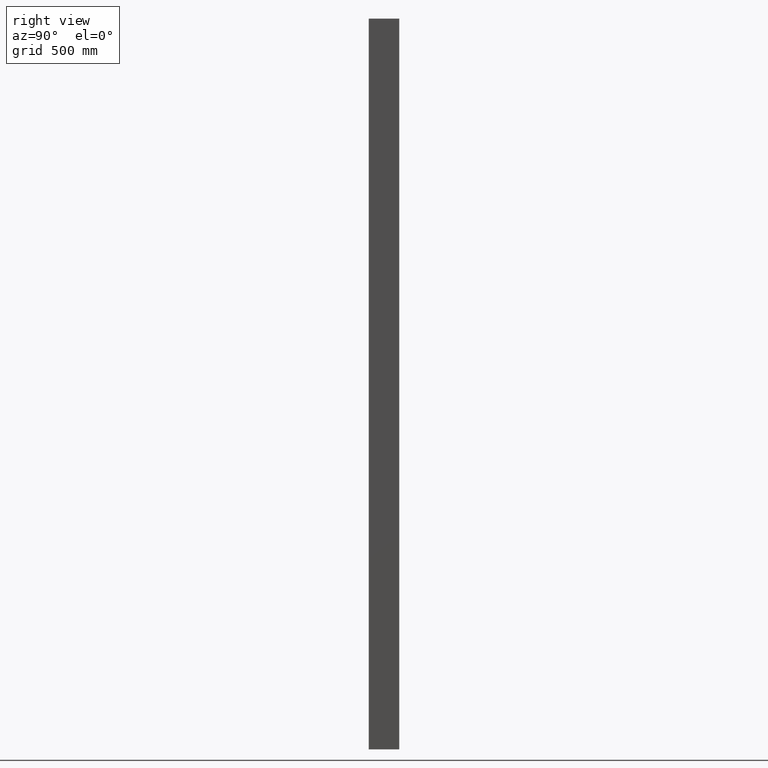
[diagram: clean part render]
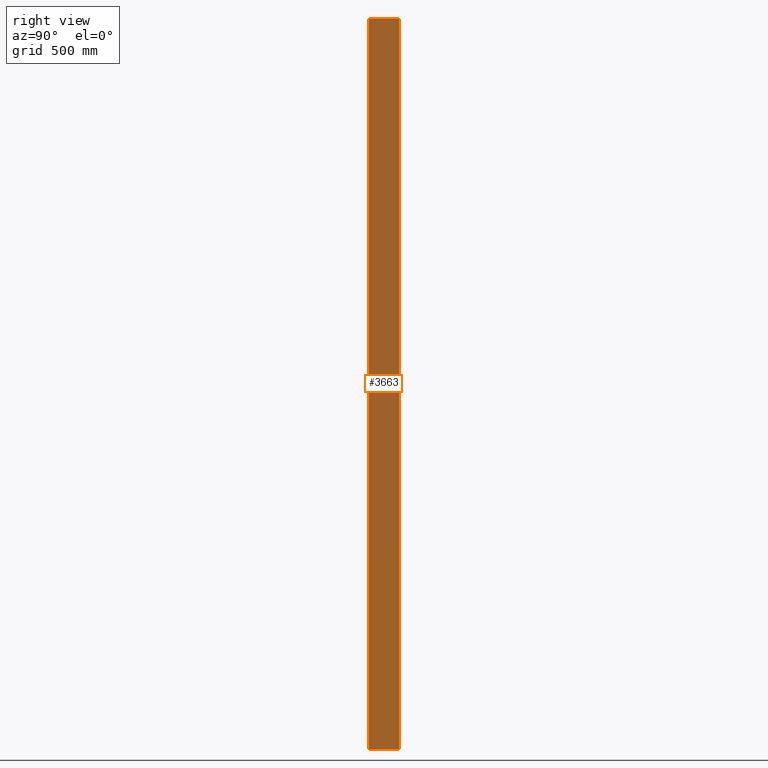
[diagram: same view with one face highlighted and labeled with its STEP entity id]
A machine part, right view. The second image highlights one B-rep face of the part: STEP entity #3663.
In plain terms, the highlighted planar face has unit normal (-1, -0, 0).
Its self-contained STEP definition (entity closure, byte-faithful):
#624 = EDGE_CURVE ( 'NONE', #9004, #5984, #1714, .T. ) ;
#666 = EDGE_CURVE ( 'NONE', #9004, #18870, #13837, .T. ) ;
#1454 = EDGE_CURVE ( 'NONE', #18870, #2544, #14642, .T. ) ;
#1479 = CARTESIAN_POINT ( 'NONE',  ( 23.50000000000000000, 5.870304242705519900E-015, 1500.000000000000000 ) ) ;
#1714 = LINE ( 'NONE', #1479, #9162 ) ;
#2544 = VERTEX_POINT ( 'NONE', #13638 ) ;
#3663 = ADVANCED_FACE ( 'NONE', ( #17589 ), #22610, .F. ) ;
#3887 = CARTESIAN_POINT ( 'NONE',  ( 23.50000000000000000, 5.870304242705519900E-015, -1500.000000000000000 ) ) ;
#4981 = LINE ( 'NONE', #19811, #6066 ) ;
#5984 = VERTEX_POINT ( 'NONE', #13551 ) ;
#6066 = VECTOR ( 'NONE', #18409, 1000.000000000000000 ) ;
#6716 = CARTESIAN_POINT ( 'NONE',  ( 23.50000000000000000, 0.0000000000000000000, 1500.000000000000000 ) ) ;
#8428 = ORIENTED_EDGE ( 'NONE', *, *, #1454, .T. ) ;
#8595 = CARTESIAN_POINT ( 'NONE',  ( 23.50000000000000000, 5.870304242705519900E-015, 1500.000000000000000 ) ) ;
#8770 = CARTESIAN_POINT ( 'NONE',  ( 23.50000000000000000, 0.0000000000000000000, 1500.000000000000000 ) ) ;
#9004 = VERTEX_POINT ( 'NONE', #6716 ) ;
#9162 = VECTOR ( 'NONE', #10460, 1000.000000000000000 ) ;
#9286 = ORIENTED_EDGE ( 'NONE', *, *, #12731, .F. ) ;
#9305 = ORIENTED_EDGE ( 'NONE', *, *, #624, .F. ) ;
#9632 = AXIS2_PLACEMENT_3D ( 'NONE', #8595, #19168, #21146 ) ;
#10460 = DIRECTION ( 'NONE',  ( -2.498001805406604200E-016, 1.000000000000000000, 0.0000000000000000000 ) ) ;
#10954 = DIRECTION ( 'NONE',  ( -2.498001805406604200E-016, 1.000000000000000000, 0.0000000000000000000 ) ) ;
#12215 = ORIENTED_EDGE ( 'NONE', *, *, #666, .T. ) ;
#12731 = EDGE_CURVE ( 'NONE', #5984, #2544, #4981, .T. ) ;
#13551 = CARTESIAN_POINT ( 'NONE',  ( 23.49999999999996800, 124.9999999999998900, 1500.000000000000000 ) ) ;
#13638 = CARTESIAN_POINT ( 'NONE',  ( 23.49999999999996800, 124.9999999999998900, -1500.000000000000000 ) ) ;
#13708 = DIRECTION ( 'NONE',  ( -0.0000000000000000000, -0.0000000000000000000, -1.000000000000000000 ) ) ;
#13837 = LINE ( 'NONE', #8770, #15478 ) ;
#14526 = CARTESIAN_POINT ( 'NONE',  ( 23.50000000000000000, 0.0000000000000000000, -1500.000000000000000 ) ) ;
#14642 = LINE ( 'NONE', #3887, #18481 ) ;
#15478 = VECTOR ( 'NONE', #13708, 1000.000000000000000 ) ;
#17589 = FACE_OUTER_BOUND ( 'NONE', #22757, .T. ) ;
#18409 = DIRECTION ( 'NONE',  ( -0.0000000000000000000, -0.0000000000000000000, -1.000000000000000000 ) ) ;
#18481 = VECTOR ( 'NONE', #10954, 1000.000000000000000 ) ;
#18870 = VERTEX_POINT ( 'NONE', #14526 ) ;
#19168 = DIRECTION ( 'NONE',  ( -1.000000000000000000, -2.498001805406604200E-016, 0.0000000000000000000 ) ) ;
#19811 = CARTESIAN_POINT ( 'NONE',  ( 23.49999999999996800, 124.9999999999998900, 1500.000000000000000 ) ) ;
#21146 = DIRECTION ( 'NONE',  ( 2.498001805406604200E-016, -1.000000000000000000, 0.0000000000000000000 ) ) ;
#22610 = PLANE ( 'NONE',  #9632 ) ;
#22757 = EDGE_LOOP ( 'NONE', ( #8428, #9286, #9305, #12215 ) ) ;